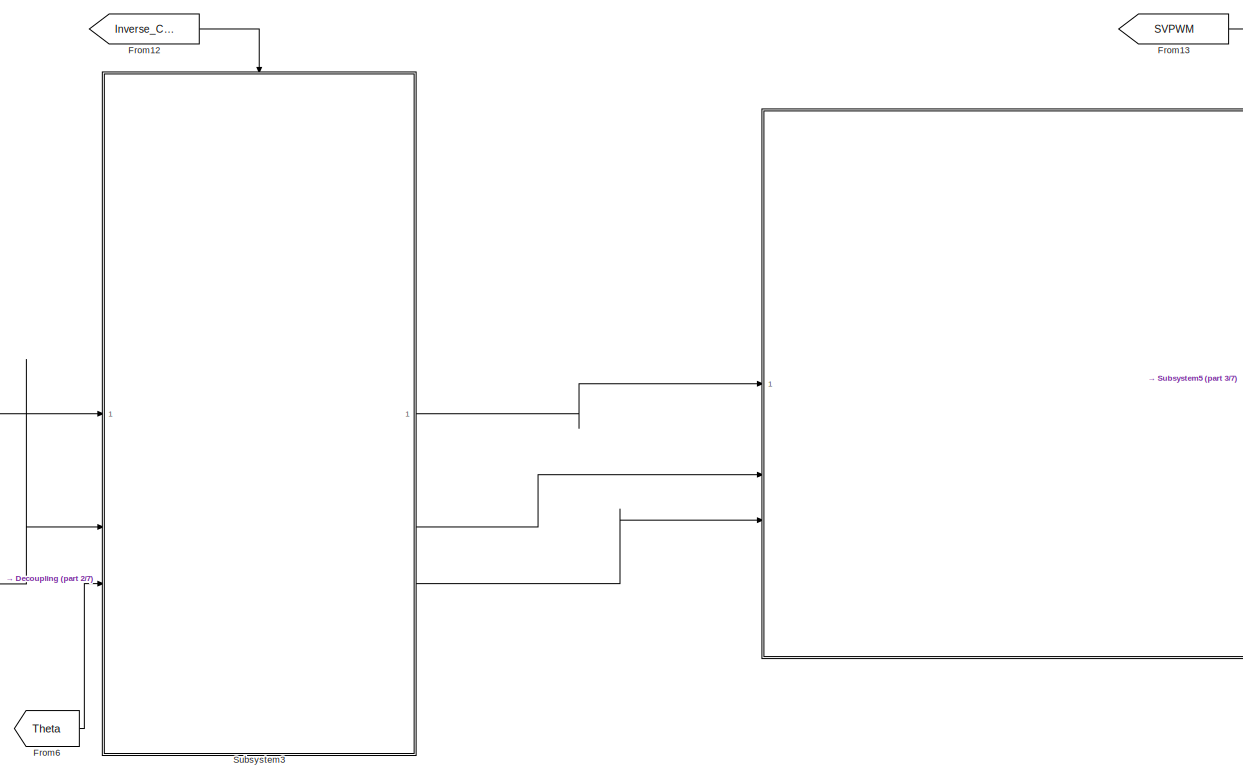
[diagram: root canvas - part 1/7, top center region]
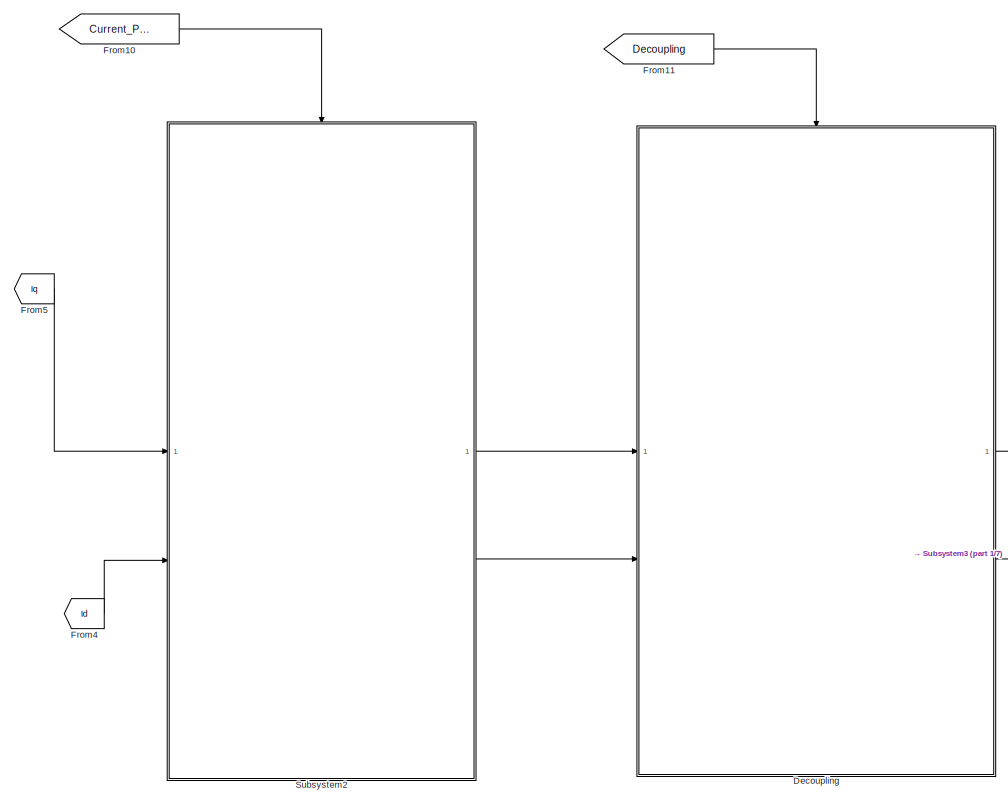
[diagram: root canvas - part 2/7, top left region]
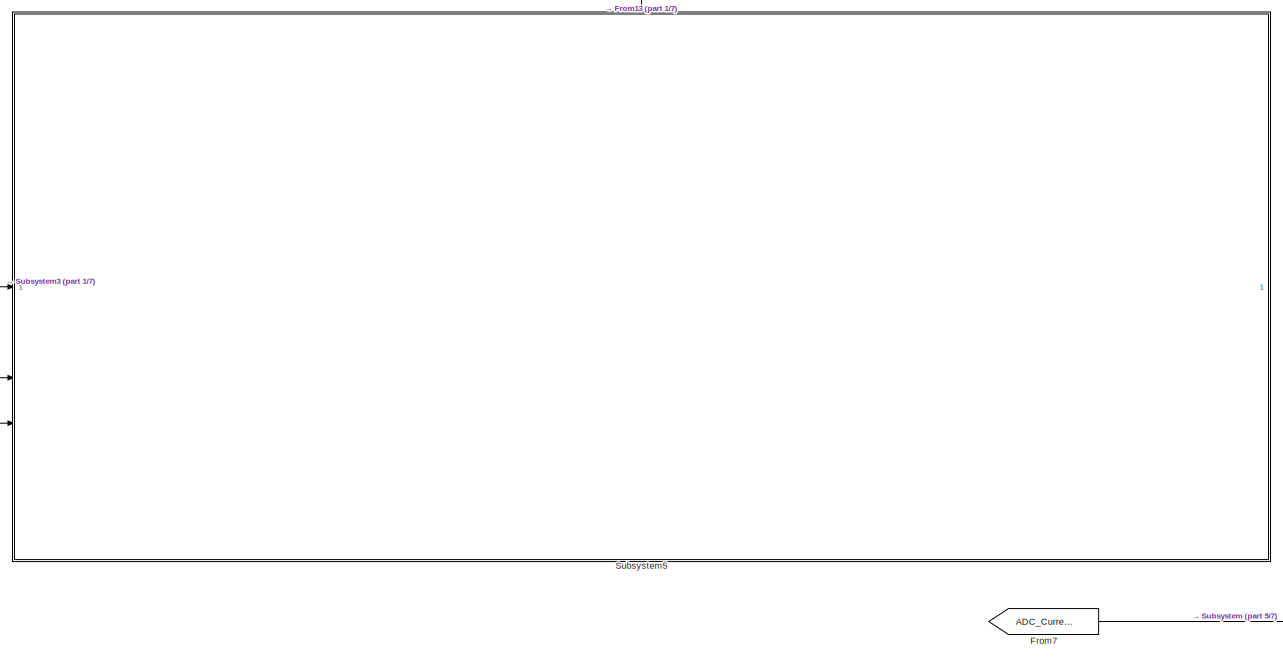
[diagram: root canvas - part 3/7, top center region]
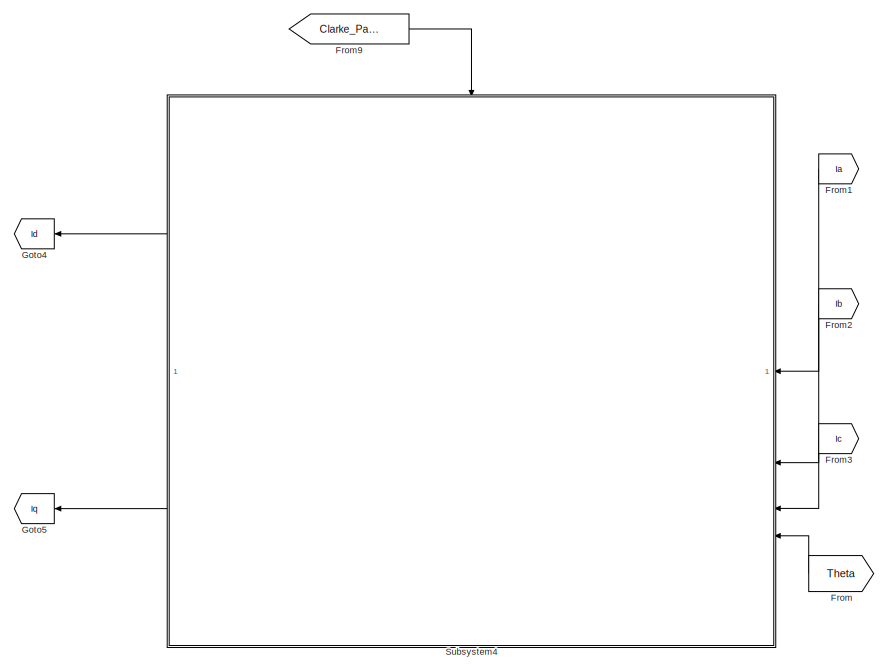
[diagram: root canvas - part 4/7, central region]
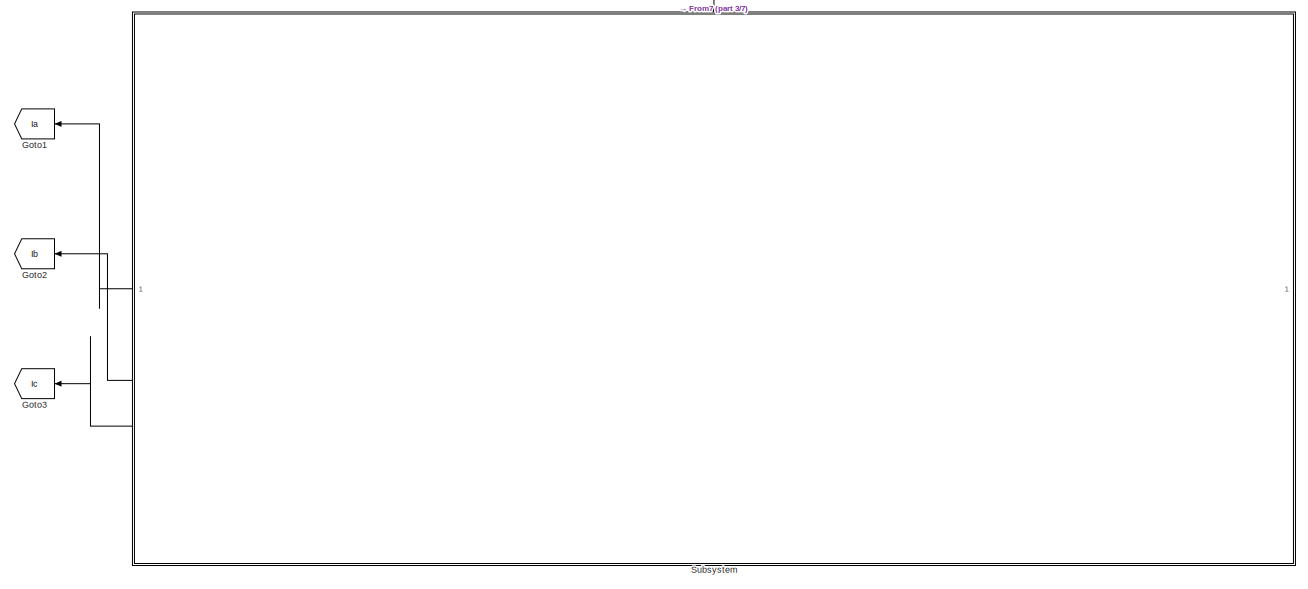
[diagram: root canvas - part 5/7, middle right region]
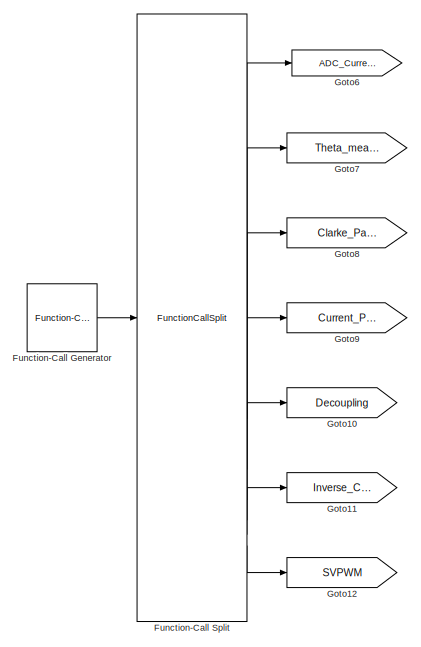
[diagram: root canvas - part 6/7, bottom left region]
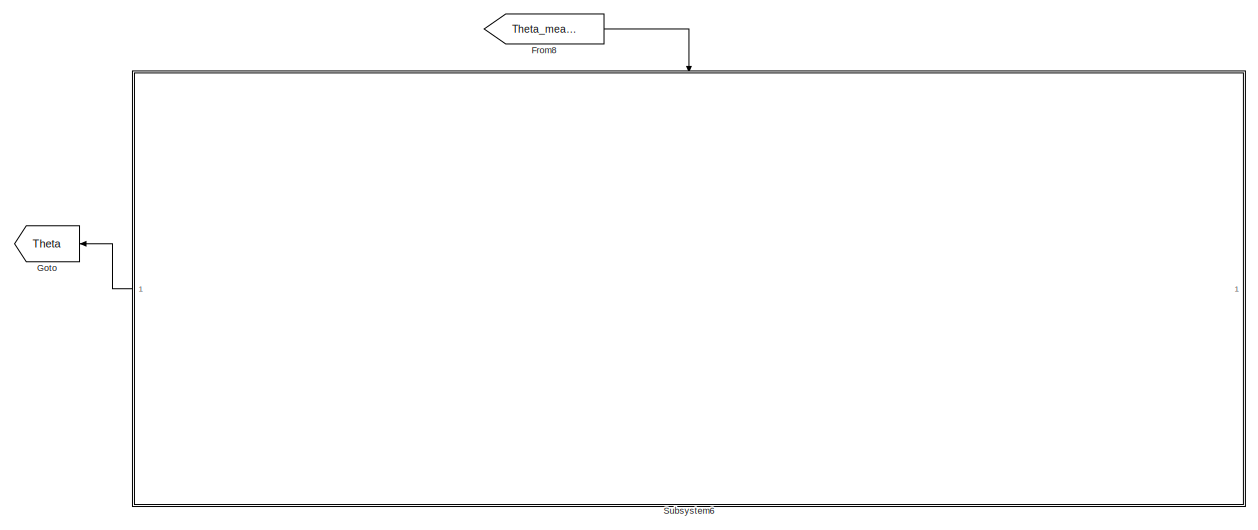
[diagram: root canvas - part 7/7, bottom right region]
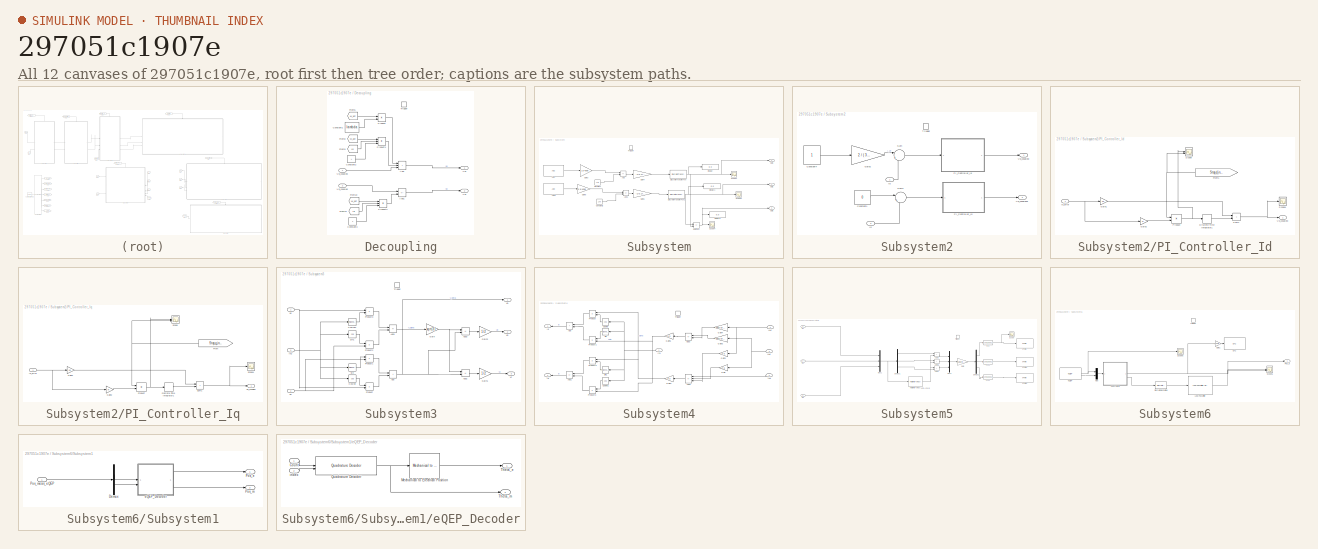
[diagram: thumbnail index - all 12 canvases of the model, root first then tree order]
MODEL slx_297051c1907e
KIND model
CONFIG AbsTol = auto
CONFIG EnableMultiTasking = on
CONFIG FixedStep = 1e-5
CONFIG MaxStep = auto
CONFIG MinStep = auto
CONFIG RelTol = 1e-3
CONFIG SampleTimeConstraint = Unconstrained
CONFIG SolverName = FixedStepAuto
CONFIG StartTime = 0.0
CONFIG StopTime = Inf
BLOCK [SubSystem] Decoupling
BLOCK [Sum] Decoupling/Add
  IconShape = rectangular
  Inputs = +++
BLOCK [Sum] Decoupling/Add1
  IconShape = rectangular
  Inputs = +-
BLOCK [Constant] Decoupling/Constant1
  Value = lambda
BLOCK [Constant] Decoupling/Constant2
  Value = L
BLOCK [Constant] Decoupling/Constant3
  Value = L
BLOCK [From] Decoupling/From10
  GotoTag = W_act
BLOCK [From] Decoupling/From11
  GotoTag = Id
  NameLocation = top
BLOCK [From] Decoupling/From5
  GotoTag = W_act
BLOCK [From] Decoupling/From8
  GotoTag = W_act
BLOCK [From] Decoupling/From9
  GotoTag = Iq
  NameLocation = top
BLOCK [Product] Decoupling/Product
BLOCK [Product] Decoupling/Product1
  Inputs = 3
BLOCK [Product] Decoupling/Product2
  Inputs = 3
BLOCK [TriggerPort] Decoupling/Trigger
  PortDimensions = 1
  StatesWhenEnabling = held
  TriggerType = function-call
  VariantControl = Variant
BLOCK [Outport] Decoupling/Vd*
  Port = 2
BLOCK [Inport] Decoupling/Vd_coupled
  Port = 2
BLOCK [Outport] Decoupling/Vq*
BLOCK [Inport] Decoupling/Vq_coupled
BLOCK [From] From
  GotoTag = Theta
  NameLocation = top
BLOCK [From] From1
  GotoTag = Ia
  NameLocation = top
BLOCK [From] From10
  GotoTag = Current_PI_Control
BLOCK [From] From11
  GotoTag = Decoupling
BLOCK [From] From12
  GotoTag = Inverse_Clarke_Park
BLOCK [From] From13
  GotoTag = SVPWM
BLOCK [From] From2
  GotoTag = Ib
  NameLocation = top
BLOCK [From] From3
  GotoTag = Ic
  NameLocation = top
BLOCK [From] From4
  GotoTag = Id
  NameLocation = top
BLOCK [From] From5
  GotoTag = Iq
  NameLocation = top
BLOCK [From] From6
  GotoTag = Theta
BLOCK [From] From7
  GotoTag = ADC_Current
BLOCK [From] From8
  GotoTag = Theta_measurment
BLOCK [From] From9
  GotoTag = Clarke_Park
BLOCK [Reference] Function-Call Generator  REF=simulink/Ports &
Subsystems/Function-Call
Generator
  SourceBlock = simulink/Ports &\nSubsystems/Function-Call\nGenerator
  SourceType = Function-Call Generator
BLOCK [FunctionCallSplit] Function-Call Split
  IconShape = distinctive
  NumOutputPorts = 7
  OutputPortLayout = default
BLOCK [Goto] Goto
  GotoTag = Theta
BLOCK [Goto] Goto1
  GotoTag = Ia
BLOCK [Goto] Goto10
  GotoTag = Decoupling
BLOCK [Goto] Goto11
  GotoTag = Inverse_Clarke_Park
BLOCK [Goto] Goto12
  GotoTag = SVPWM
BLOCK [Goto] Goto2
  GotoTag = Ib
BLOCK [Goto] Goto3
  GotoTag = Ic
BLOCK [Goto] Goto4
  GotoTag = Id
  NameLocation = top
BLOCK [Goto] Goto5
  GotoTag = Iq
  NameLocation = top
BLOCK [Goto] Goto6
  GotoTag = ADC_Current
BLOCK [Goto] Goto7
  GotoTag = Theta_measurment
BLOCK [Goto] Goto8
  GotoTag = Clarke_Park
BLOCK [Goto] Goto9
  GotoTag = Current_PI_Control
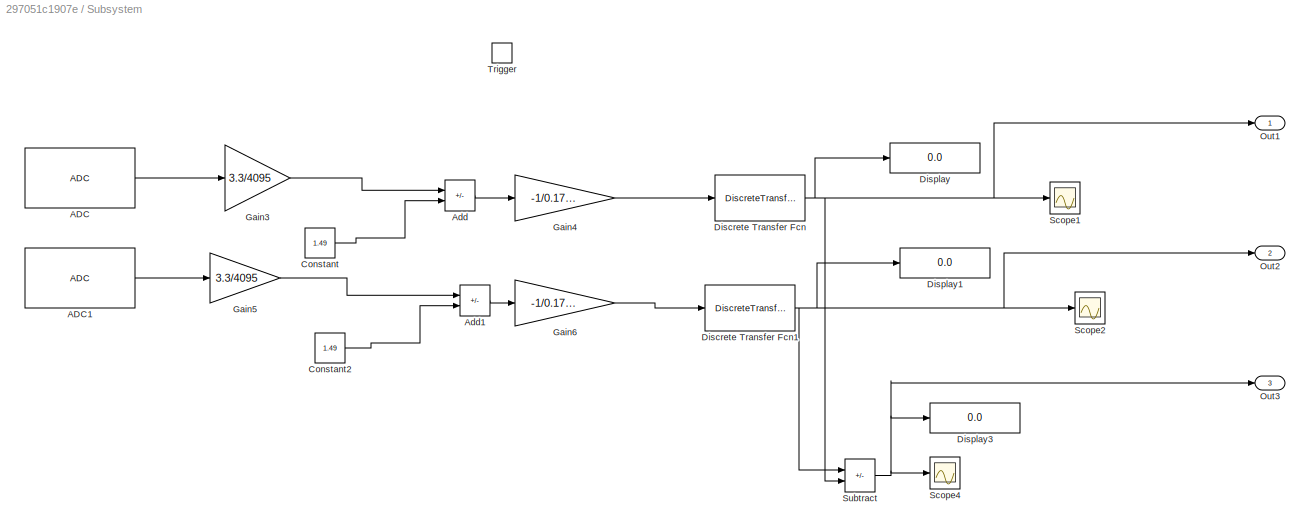
BLOCK [SubSystem] Subsystem
BLOCK [Reference] Subsystem/ADC  REF=c2802xlib/ADC
  LibrarySourceBlock = c2837xDlib/ADC
  SourceBlock = c2802xlib/ADC
  SourceType = ADC Type 3-5
  UserDataPersistent = on
BLOCK [Reference] Subsystem/ADC1  REF=c2802xlib/ADC
  LibrarySourceBlock = c2837xDlib/ADC
  SourceBlock = c2802xlib/ADC
  SourceType = ADC Type 3-5
  UserDataPersistent = on
BLOCK [Sum] Subsystem/Add
  IconShape = rectangular
  Inputs = +-
BLOCK [Sum] Subsystem/Add1
  IconShape = rectangular
  Inputs = +-
BLOCK [Constant] Subsystem/Constant
  Value = 1.49
BLOCK [Constant] Subsystem/Constant2
  Value = 1.49
BLOCK [DiscreteTransferFcn] Subsystem/Discrete Transfer Fcn
  Denominator = [1 -0.9048]
  InputPortMap = u0
  Numerator = [0.09516]
BLOCK [DiscreteTransferFcn] Subsystem/Discrete Transfer Fcn1
  Denominator = [1 -0.9048]
  InputPortMap = u0
  Numerator = [0.09516]
BLOCK [Display] Subsystem/Display
  Decimation = 1
BLOCK [Display] Subsystem/Display1
  Decimation = 1
BLOCK [Display] Subsystem/Display3
  Decimation = 1
BLOCK [Gain] Subsystem/Gain3
  Gain = 3.3/4095
BLOCK [Gain] Subsystem/Gain4
  Gain = -1/0.177985
BLOCK [Gain] Subsystem/Gain5
  Gain = 3.3/4095
BLOCK [Gain] Subsystem/Gain6
  Gain = -1/0.177985
BLOCK [Outport] Subsystem/Out1
BLOCK [Outport] Subsystem/Out2
  Port = 2
BLOCK [Outport] Subsystem/Out3
  Port = 3
BLOCK [Scope] Subsystem/Scope1
  Floating = off
  NumInputPorts = 1
  ScopeSpecificationString = Simulink.scopes.TimeScopeBlockCfg('CurrentConfiguration', extmgr.ConfigurationSet(extmgr.Configuration('Core','General UI',true),extmgr.Configuration('Core','Source UI',true),extmgr.Configuration('Sources','WiredSimulink',true,'DataLoggingVariableName','ScopeData1'),extmgr.Configuration('Visuals','Time Domain',true,'SerializedDisplays',{struct('MinYLimReal','-1.90921','MaxYLimReal','3.42576','YLab...<+1542ch>
BLOCK [Scope] Subsystem/Scope2
  Floating = off
  NumInputPorts = 1
  ScopeSpecificationString = Simulink.scopes.TimeScopeBlockCfg('CurrentConfiguration', extmgr.ConfigurationSet(extmgr.Configuration('Core','General UI',true),extmgr.Configuration('Core','Source UI',true),extmgr.Configuration('Sources','WiredSimulink',true,'DataLoggingVariableName','ScopeData2'),extmgr.Configuration('Visuals','Time Domain',true,'SerializedDisplays',{struct('MinYLimReal','-1.69838','MaxYLimReal','2.28268','YLab...<+1543ch>
BLOCK [Scope] Subsystem/Scope4
  Floating = off
  NumInputPorts = 1
  ScopeSpecificationString = Simulink.scopes.TimeScopeBlockCfg('CurrentConfiguration', extmgr.ConfigurationSet(extmgr.Configuration('Core','General UI',true),extmgr.Configuration('Core','Source UI',true),extmgr.Configuration('Sources','WiredSimulink',true,'DataLoggingVariableName','ScopeData4'),extmgr.Configuration('Visuals','Time Domain',true,'SerializedDisplays',{struct('MinYLimReal','-2.90027','MaxYLimReal','2.0283','YLabe...<+1527ch>
BLOCK [Sum] Subsystem/Subtract
  IconShape = rectangular
  Inputs = --
BLOCK [TriggerPort] Subsystem/Trigger
  PortDimensions = 1
  StatesWhenEnabling = held
  TriggerType = function-call
  VariantControl = (inherit)
BLOCK [SubSystem] Subsystem2
BLOCK [Constant] Subsystem2/Constant1
  Value = 0
BLOCK [Constant] Subsystem2/Constant4
BLOCK [Gain] Subsystem2/Gain2
  Gain = 2 / ( 3 * lambda * p)
BLOCK [Inport] Subsystem2/Id
  Port = 2
BLOCK [Inport] Subsystem2/Iq
BLOCK [SubSystem] Subsystem2/PI_Controller_Id
BLOCK [DiscreteIntegrator] Subsystem2/PI_Controller_Id/Discrete-Time Integrator1
  ICPrevOutput = DiscIntNeverNeededParam
  ICPrevScaledInput = DiscIntNeverNeededParam
  InitialConditionSetting = Auto
  SampleTime = -1
BLOCK [From] Subsystem2/PI_Controller_Id/From1
  GotoTag = Stop_d_integrator
  NameLocation = top
BLOCK [Gain] Subsystem2/PI_Controller_Id/Gain1
  Gain = Kp
BLOCK [Gain] Subsystem2/PI_Controller_Id/Gain2
  Gain = Ki
BLOCK [Inport] Subsystem2/PI_Controller_Id/Id_error
BLOCK [Product] Subsystem2/PI_Controller_Id/Product
BLOCK [Scope] Subsystem2/PI_Controller_Id/Scope
  Floating = off
  NumInputPorts = 2
  ScopeSpecificationString = Simulink.scopes.TimeScopeBlockCfg('CurrentConfiguration', extmgr.ConfigurationSet(extmgr.Configuration('Core','General UI',true),extmgr.Configuration('Core','Source UI',true),extmgr.Configuration('Sources','WiredSimulink',true,'DataLoggingVariableName','ScopeData5'),extmgr.Configuration('Visuals','Time Domain',true,'SerializedDisplays',{struct('MinYLimReal','-1.00000','MaxYLimReal','1.00000','YLab...<+2107ch>
BLOCK [Scope] Subsystem2/PI_Controller_Id/Scope1
  Floating = off
  NumInputPorts = 1
  ScopeSpecificationString = Simulink.scopes.TimeScopeBlockCfg('CurrentConfiguration', extmgr.ConfigurationSet(extmgr.Configuration('Core','General UI',true),extmgr.Configuration('Core','Source UI',true),extmgr.Configuration('Sources','WiredSimulink',true,'DataLoggingVariableName','ScopeData6'),extmgr.Configuration('Visuals','Time Domain',true,'SerializedDisplays',{struct('MinYLimReal','-10.12078','MaxYLimReal','20.5558','YLa...<+1365ch>
BLOCK [Sum] Subsystem2/PI_Controller_Id/Sum1
  IconShape = rectangular
BLOCK [Outport] Subsystem2/PI_Controller_Id/Vd_coupled
BLOCK [SubSystem] Subsystem2/PI_Controller_Iq
BLOCK [DiscreteIntegrator] Subsystem2/PI_Controller_Iq/Discrete-Time Integrator1
  ICPrevOutput = DiscIntNeverNeededParam
  ICPrevScaledInput = DiscIntNeverNeededParam
  InitialConditionSetting = Auto
  SampleTime = -1
BLOCK [From] Subsystem2/PI_Controller_Iq/From
  GotoTag = Stop_q_integrator
  NameLocation = top
BLOCK [Gain] Subsystem2/PI_Controller_Iq/Gain1
  Gain = Kp
BLOCK [Gain] Subsystem2/PI_Controller_Iq/Gain2
  Gain = Ki
BLOCK [Inport] Subsystem2/PI_Controller_Iq/Iq_error
BLOCK [Product] Subsystem2/PI_Controller_Iq/Product
BLOCK [Scope] Subsystem2/PI_Controller_Iq/Scope
  Floating = off
  NumInputPorts = 2
  ScopeSpecificationString = Simulink.scopes.TimeScopeBlockCfg('CurrentConfiguration', extmgr.ConfigurationSet(extmgr.Configuration('Core','General UI',true),extmgr.Configuration('Core','Source UI',true),extmgr.Configuration('Sources','WiredSimulink',true,'DataLoggingVariableName','ScopeData3'),extmgr.Configuration('Visuals','Time Domain',true,'SerializedDisplays',{struct('MinYLimReal','-1.00000','MaxYLimReal','1.00000','YLab...<+2107ch>
BLOCK [Scope] Subsystem2/PI_Controller_Iq/Scope1
  Floating = off
  NumInputPorts = 1
  ScopeSpecificationString = Simulink.scopes.TimeScopeBlockCfg('CurrentConfiguration', extmgr.ConfigurationSet(extmgr.Configuration('Core','General UI',true),extmgr.Configuration('Core','Source UI',true),extmgr.Configuration('Sources','WiredSimulink',true,'DataLoggingVariableName','ScopeData4'),extmgr.Configuration('Visuals','Time Domain',true,'SerializedDisplays',{struct('MinYLimReal','-154.32448','MaxYLimReal','-121.22466',...<+1398ch>
BLOCK [Sum] Subsystem2/PI_Controller_Iq/Sum1
  IconShape = rectangular
BLOCK [Outport] Subsystem2/PI_Controller_Iq/Vq_coupled
BLOCK [Sum] Subsystem2/Sum
  Inputs = |+-
BLOCK [Sum] Subsystem2/Sum1
  Inputs = |+-
BLOCK [TriggerPort] Subsystem2/Trigger
  PortDimensions = 1
  StatesWhenEnabling = held
  TriggerType = function-call
  VariantControl = (inherit)
BLOCK [Outport] Subsystem2/Vd_coupled1
  Port = 2
BLOCK [Outport] Subsystem2/Vq_coupled
BLOCK [SubSystem] Subsystem3
BLOCK [Sum] Subsystem3/Add
  IconShape = rectangular
BLOCK [Sum] Subsystem3/Add1
  IconShape = rectangular
  Inputs = -+
BLOCK [Sum] Subsystem3/Add2
  IconShape = rectangular
  Inputs = --
BLOCK [Sum] Subsystem3/Add3
  IconShape = rectangular
  Inputs = +-
BLOCK [Trigonometry] Subsystem3/Cosine
  NameLocation = top
  Operator = cos
BLOCK [Trigonometry] Subsystem3/Cosine1
  NameLocation = top
BLOCK [Gain] Subsystem3/Gain
  Gain = sqrt(3)
BLOCK [Gain] Subsystem3/Gain1
  Gain = 1/2
BLOCK [Gain] Subsystem3/Gain2
  Gain = 1/2
BLOCK [Inport] Subsystem3/In2
  Port = 3
BLOCK [Product] Subsystem3/Product
BLOCK [Product] Subsystem3/Product1
BLOCK [Product] Subsystem3/Product2
BLOCK [Product] Subsystem3/Product3
BLOCK [Trigonometry] Subsystem3/Sin
BLOCK [Trigonometry] Subsystem3/Sin1
  NameLocation = top
  Operator = cos
BLOCK [TriggerPort] Subsystem3/Trigger
  PortDimensions = 1
  StatesWhenEnabling = held
  TriggerType = function-call
  VariantControl = Variant
BLOCK [Outport] Subsystem3/Va
BLOCK [Outport] Subsystem3/Vb
  Port = 2
BLOCK [Outport] Subsystem3/Vc
  Port = 3
BLOCK [Inport] Subsystem3/Vd
  Port = 2
BLOCK [Inport] Subsystem3/Vq
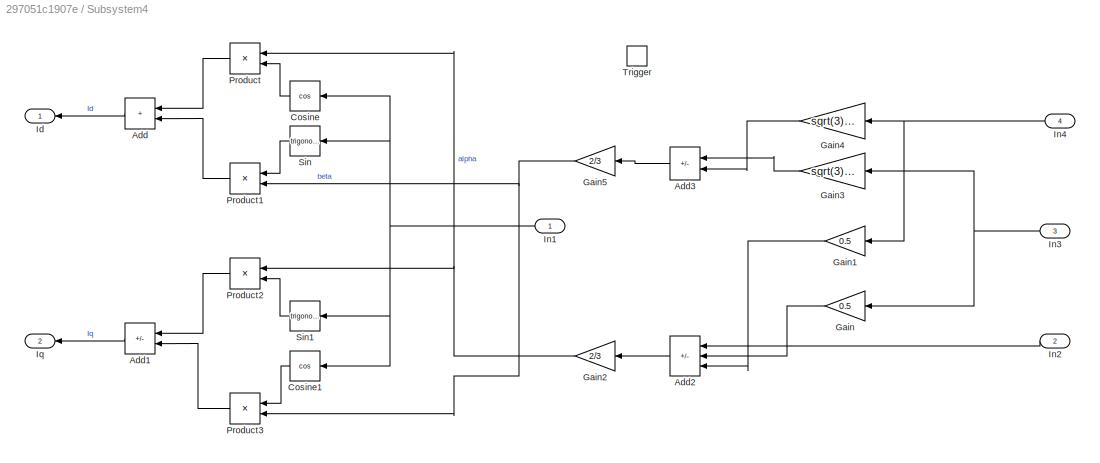
BLOCK [SubSystem] Subsystem4
BLOCK [Sum] Subsystem4/Add
  IconShape = rectangular
  NameLocation = top
BLOCK [Sum] Subsystem4/Add1
  IconShape = rectangular
  Inputs = -+
  NameLocation = top
BLOCK [Sum] Subsystem4/Add2
  IconShape = rectangular
  Inputs = +--
  NameLocation = top
BLOCK [Sum] Subsystem4/Add3
  IconShape = rectangular
  Inputs = +-
  NameLocation = top
BLOCK [Trigonometry] Subsystem4/Cosine
  Operator = cos
BLOCK [Trigonometry] Subsystem4/Cosine1
  Operator = cos
BLOCK [Gain] Subsystem4/Gain
  Gain = 0.5
  NameLocation = top
BLOCK [Gain] Subsystem4/Gain1
  Gain = 0.5
  NameLocation = top
BLOCK [Gain] Subsystem4/Gain2
  Gain = 2/3
  NameLocation = top
BLOCK [Gain] Subsystem4/Gain3
  Gain = sqrt(3)/2
  NameLocation = top
BLOCK [Gain] Subsystem4/Gain4
  Gain = sqrt(3)/2
  NameLocation = top
BLOCK [Gain] Subsystem4/Gain5
  Gain = 2/3
  NameLocation = top
BLOCK [Outport] Subsystem4/Id
BLOCK [Inport] Subsystem4/In1
BLOCK [Inport] Subsystem4/In2
  Port = 2
BLOCK [Inport] Subsystem4/In3
  Port = 3
BLOCK [Inport] Subsystem4/In4
  Port = 4
BLOCK [Outport] Subsystem4/Iq
  Port = 2
BLOCK [Product] Subsystem4/Product
  NameLocation = top
BLOCK [Product] Subsystem4/Product1
  NameLocation = top
BLOCK [Product] Subsystem4/Product2
  NameLocation = top
BLOCK [Product] Subsystem4/Product3
  NameLocation = top
BLOCK [Trigonometry] Subsystem4/Sin
  NameLocation = top
BLOCK [Trigonometry] Subsystem4/Sin1
BLOCK [TriggerPort] Subsystem4/Trigger
  PortDimensions = 1
  StatesWhenEnabling = held
  TriggerType = function-call
  VariantControl = (inherit)
BLOCK [SubSystem] Subsystem5
BLOCK [Sum] Subsystem5/Add3
  AccumDataTypeStr = Inherit: Same as first input
  IconShape = rectangular
  OutDataTypeStr = Inherit: Same as first input
  RndMeth = Simplest
BLOCK [Sum] Subsystem5/Add4
  AccumDataTypeStr = Inherit: Same as first input
  IconShape = rectangular
  OutDataTypeStr = Inherit: Same as first input
  RndMeth = Simplest
BLOCK [Sum] Subsystem5/Add5
  AccumDataTypeStr = Inherit: Same as first input
  IconShape = rectangular
  OutDataTypeStr = Inherit: Same as first input
  RndMeth = Simplest
BLOCK [Demux] Subsystem5/Demux1
  Outputs = 3
BLOCK [Demux] Subsystem5/Demux2
  Outputs = 3
BLOCK [Fcn] Subsystem5/Fcn
  Expr = (u+1)*(10000/2)
BLOCK [Fcn] Subsystem5/Fcn1
  Expr = (u+1)*(10000/2)
BLOCK [Fcn] Subsystem5/Fcn2
  Expr = (u+1)*(10000/2)
BLOCK [Gain] Subsystem5/Gain
  Gain = 2/sqrt(3)
  OutDataTypeStr = Inherit: Same as input
  ParamDataTypeStr = Inherit: Same as input
  RndMeth = Simplest
BLOCK [Reference] Subsystem5/Half(Vmin+Vmax)  REF=mcbcontrolslib/PWM Reference Generator/Modulation method/SVPWM/Half(Vmin+Vmax)
  SourceBlock = mcbcontrolslib/PWM Reference Generator/Modulation method/SVPWM/Half(Vmin+Vmax)
  SourceType = SubSystem
BLOCK [Inport] Subsystem5/In1
BLOCK [Inport] Subsystem5/In2
  Port = 2
BLOCK [Inport] Subsystem5/In3
  Port = 3
BLOCK [Mux] Subsystem5/Mux1
  DisplayOption = bar
  Inputs = 3
BLOCK [Mux] Subsystem5/Mux2
  DisplayOption = bar
  Inputs = 3
BLOCK [Scope] Subsystem5/Scope
  Floating = off
  NumInputPorts = 1
  ScopeSpecificationString = Simulink.scopes.TimeScopeBlockCfg('CurrentConfiguration', extmgr.ConfigurationSet(extmgr.Configuration('Core','General UI',true),extmgr.Configuration('Core','Source UI',true),extmgr.Configuration('Sources','WiredSimulink',true,'DataLoggingVariableName','ScopeData5'),extmgr.Configuration('Visuals','Time Domain',true,'SerializedDisplays',{struct('MinYLimReal','443.52078','MaxYLimReal','9777.54789','...<+1513ch>
BLOCK [TriggerPort] Subsystem5/Trigger
  PortDimensions = 1
  StatesWhenEnabling = held
  TriggerType = function-call
  VariantControl = (inherit)
BLOCK [Reference] Subsystem5/ePWM  REF=c2802xlib/ePWM
  LibrarySourceBlock = c2837xDlib/ePWM
  SourceBlock = c2802xlib/ePWM
  SourceType = ePWM Type 1-4
  UserDataPersistent = on
BLOCK [Reference] Subsystem5/ePWM1  REF=c2802xlib/ePWM
  LibrarySourceBlock = c2837xDlib/ePWM
  SourceBlock = c2802xlib/ePWM
  SourceType = ePWM Type 1-4
  UserDataPersistent = on
BLOCK [Reference] Subsystem5/ePWM2  REF=c2802xlib/ePWM
  LibrarySourceBlock = c2837xDlib/ePWM
  SourceBlock = c2802xlib/ePWM
  SourceType = ePWM Type 1-4
  UserDataPersistent = on
BLOCK [SubSystem] Subsystem6
BLOCK [Reference] Subsystem6/DAC  REF=c2837xDlib/DAC
  SourceBlock = c2837xDlib/DAC
  SourceType = codertarget.tic2000.blocks.DACWrite
BLOCK [Reference] Subsystem6/Discrete Derivative  REF=simulink/Discrete/Discrete Derivative
  SourceBlock = simulink/Discrete/Discrete Derivative
  SourceType = Discrete Derivative
BLOCK [Gain] Subsystem6/Gain1
  Gain = 4095/(2*pi)
BLOCK [Reference] Subsystem6/Low-Pass Filter   REF=eeGeneralControl/Low-Pass Filter
(Discrete or Continuous)
  SourceBlock = eeGeneralControl/Low-Pass Filter\n(Discrete or Continuous)
  SourceType = Low-Pass Filter (Discrete or Continuous)
BLOCK [Mux] Subsystem6/Mux
  DisplayOption = bar
  Inputs = 2
BLOCK [Outport] Subsystem6/Pos_e
BLOCK [Scope] Subsystem6/Scope5
  Floating = off
  NumInputPorts = 1
  ScopeSpecificationString = Simulink.scopes.TimeScopeBlockCfg('CurrentConfiguration', extmgr.ConfigurationSet(extmgr.Configuration('Core','General UI',true),extmgr.Configuration('Core','Source UI',true),extmgr.Configuration('Sources','WiredSimulink',true,'DataLoggingVariableName','ScopeData6'),extmgr.Configuration('Visuals','Time Domain',true,'SerializedDisplays',{struct('MinYLimReal','-3750.00000','MaxYLimReal','33750.00000...<+1553ch>
BLOCK [Scope] Subsystem6/Scope6
  Floating = off
  NumInputPorts = 2
  ScopeSpecificationString = Simulink.scopes.TimeScopeBlockCfg('CurrentConfiguration', extmgr.ConfigurationSet(extmgr.Configuration('Core','General UI',true),extmgr.Configuration('Core','Source UI',true),extmgr.Configuration('Sources','WiredSimulink',true,'DataLoggingVariableName','ScopeData7'),extmgr.Configuration('Visuals','Time Domain',true,'SerializedDisplays',{struct('MinYLimReal','-0.78501','MaxYLimReal','7.06505','YLab...<+3125ch>
BLOCK [SubSystem] Subsystem6/Subsystem1
BLOCK [Demux] Subsystem6/Subsystem1/Demux
  Outputs = 2
BLOCK [Outport] Subsystem6/Subsystem1/Pos_e
  InitialOutput = 0
  VectorParamsAs1DForOutWhenUnconnected = off
BLOCK [Outport] Subsystem6/Subsystem1/Pos_m
  InitialOutput = 0
  Port = 2
  VectorParamsAs1DForOutWhenUnconnected = off
BLOCK [Inport] Subsystem6/Subsystem1/Pos_meas_eQEP
BLOCK [SubSystem] Subsystem6/Subsystem1/eQEP_Decoder
BLOCK [Inport] Subsystem6/Subsystem1/eQEP_Decoder/Count
BLOCK [Reference] Subsystem6/Subsystem1/eQEP_Decoder/Mechanical to Electrical Position  REF=mcbpositiondecoderlib/Mechanical to Electrical Position
  SourceBlock = mcbpositiondecoderlib/Mechanical to Electrical Position
  SourceType = Mechanical to Electrical Position
BLOCK [Reference] Subsystem6/Subsystem1/eQEP_Decoder/Quadrature Decoder  REF=mcbpositiondecoderlib/Quadrature Decoder
  SourceBlock = mcbpositiondecoderlib/Quadrature Decoder
  SourceType = Quadrature Decoder
BLOCK [Outport] Subsystem6/Subsystem1/eQEP_Decoder/Theta_e
  VectorParamsAs1DForOutWhenUnconnected = off
BLOCK [Outport] Subsystem6/Subsystem1/eQEP_Decoder/Theta_m
  Port = 2
  VectorParamsAs1DForOutWhenUnconnected = off
BLOCK [Inport] Subsystem6/Subsystem1/eQEP_Decoder/index
  Port = 2
BLOCK [TriggerPort] Subsystem6/Trigger
  PortDimensions = 1
  StatesWhenEnabling = held
  TriggerType = function-call
  VariantControl = (inherit)
BLOCK [Reference] Subsystem6/eQEP  REF=c280xlib/eQEP
  SourceBlock = c280xlib/eQEP
  SourceType = C28x eQEP
ANNOTATION Subsystem5: (Vmin+Vmax)/2
LINE Decoupling/Add1:1 -> Decoupling/Vd*:1
LINE Decoupling/Add:1 -> Decoupling/Vq*:1
LINE Decoupling/Constant1:1 -> Decoupling/Product:2
LINE Decoupling/Constant2:1 -> Decoupling/Product1:3
LINE Decoupling/Constant3:1 -> Decoupling/Product2:3
LINE Decoupling/From10:1 -> Decoupling/Product2:1
LINE Decoupling/From11:1 -> Decoupling/Product2:2
LINE Decoupling/From5:1 -> Decoupling/Product:1
LINE Decoupling/From8:1 -> Decoupling/Product1:1
LINE Decoupling/From9:1 -> Decoupling/Product1:2
LINE Decoupling/Product1:1 -> Decoupling/Add:2
LINE Decoupling/Product2:1 -> Decoupling/Add1:2
LINE Decoupling/Product:1 -> Decoupling/Add:1
LINE Decoupling/Vd_coupled:1 -> Decoupling/Add1:1
LINE Decoupling/Vq_coupled:1 -> Decoupling/Add:3
LINE Decoupling:1 -> Subsystem3:1
LINE Decoupling:2 -> Subsystem3:2
LINE From10:1 -> Subsystem2:trigger
LINE From11:1 -> Decoupling:trigger
LINE From12:1 -> Subsystem3:trigger
LINE From13:1 -> Subsystem5:trigger
LINE From1:1 -> Subsystem4:1
LINE From2:1 -> Subsystem4:2
LINE From3:1 -> Subsystem4:3
LINE From4:1 -> Subsystem2:2
LINE From5:1 -> Subsystem2:1
LINE From6:1 -> Subsystem3:3
LINE From7:1 -> Subsystem:trigger
LINE From8:1 -> Subsystem6:trigger
LINE From9:1 -> Subsystem4:trigger
LINE From:1 -> Subsystem4:4
LINE Function-Call Generator:1 -> Function-Call Split:1
LINE Function-Call Split:1 -> Goto6:1
LINE Function-Call Split:2 -> Goto7:1
LINE Function-Call Split:3 -> Goto8:1
LINE Function-Call Split:4 -> Goto9:1
LINE Function-Call Split:5 -> Goto10:1
LINE Function-Call Split:6 -> Goto11:1
LINE Function-Call Split:7 -> Goto12:1
LINE Subsystem/ADC1:1 -> Subsystem/Gain5:1
LINE Subsystem/ADC:1 -> Subsystem/Gain3:1
LINE Subsystem/Add1:1 -> Subsystem/Gain6:1
LINE Subsystem/Add:1 -> Subsystem/Gain4:1
LINE Subsystem/Constant2:1 -> Subsystem/Add1:2
LINE Subsystem/Constant:1 -> Subsystem/Add:2
NET Subsystem/Discrete Transfer Fcn1:1 -> Subsystem/Display1:1, Subsystem/Out2:1, Subsystem/Scope2:1, Subsystem/Subtract:1
NET Subsystem/Discrete Transfer Fcn:1 -> Subsystem/Display:1, Subsystem/Out1:1, Subsystem/Scope1:1, Subsystem/Subtract:2
LINE Subsystem/Gain3:1 -> Subsystem/Add:1
LINE Subsystem/Gain4:1 -> Subsystem/Discrete Transfer Fcn:1
LINE Subsystem/Gain5:1 -> Subsystem/Add1:1
LINE Subsystem/Gain6:1 -> Subsystem/Discrete Transfer Fcn1:1
NET Subsystem/Subtract:1 -> Subsystem/Display3:1, Subsystem/Out3:1, Subsystem/Scope4:1
LINE Subsystem2/Constant1:1 -> Subsystem2/Sum1:1
LINE Subsystem2/Constant4:1 -> Subsystem2/Gain2:1
LINE Subsystem2/Gain2:1 -> Subsystem2/Sum:1
LINE Subsystem2/Id:1 -> Subsystem2/Sum1:2
LINE Subsystem2/Iq:1 -> Subsystem2/Sum:2
LINE Subsystem2/PI_Controller_Id/Discrete-Time Integrator1:1 -> Subsystem2/PI_Controller_Id/Sum1:2
NET Subsystem2/PI_Controller_Id/From1:1 -> Subsystem2/PI_Controller_Id/Product:1, Subsystem2/PI_Controller_Id/Scope:2
LINE Subsystem2/PI_Controller_Id/Gain1:1 -> Subsystem2/PI_Controller_Id/Sum1:1
LINE Subsystem2/PI_Controller_Id/Gain2:1 -> Subsystem2/PI_Controller_Id/Product:2
NET Subsystem2/PI_Controller_Id/Id_error:1 -> Subsystem2/PI_Controller_Id/Gain1:1, Subsystem2/PI_Controller_Id/Gain2:1
NET Subsystem2/PI_Controller_Id/Product:1 -> Subsystem2/PI_Controller_Id/Discrete-Time Integrator1:1, Subsystem2/PI_Controller_Id/Scope:1
NET Subsystem2/PI_Controller_Id/Sum1:1 -> Subsystem2/PI_Controller_Id/Scope1:1, Subsystem2/PI_Controller_Id/Vd_coupled:1
LINE Subsystem2/PI_Controller_Id:1 -> Subsystem2/Vd_coupled1:1
LINE Subsystem2/PI_Controller_Iq/Discrete-Time Integrator1:1 -> Subsystem2/PI_Controller_Iq/Sum1:2
NET Subsystem2/PI_Controller_Iq/From:1 -> Subsystem2/PI_Controller_Iq/Product:1, Subsystem2/PI_Controller_Iq/Scope:2
LINE Subsystem2/PI_Controller_Iq/Gain1:1 -> Subsystem2/PI_Controller_Iq/Sum1:1
LINE Subsystem2/PI_Controller_Iq/Gain2:1 -> Subsystem2/PI_Controller_Iq/Product:2
NET Subsystem2/PI_Controller_Iq/Iq_error:1 -> Subsystem2/PI_Controller_Iq/Gain1:1, Subsystem2/PI_Controller_Iq/Gain2:1
NET Subsystem2/PI_Controller_Iq/Product:1 -> Subsystem2/PI_Controller_Iq/Discrete-Time Integrator1:1, Subsystem2/PI_Controller_Iq/Scope:1
NET Subsystem2/PI_Controller_Iq/Sum1:1 -> Subsystem2/PI_Controller_Iq/Scope1:1, Subsystem2/PI_Controller_Iq/Vq_coupled:1
LINE Subsystem2/PI_Controller_Iq:1 -> Subsystem2/Vq_coupled:1
LINE Subsystem2/Sum1:1 -> Subsystem2/PI_Controller_Id:1
LINE Subsystem2/Sum:1 -> Subsystem2/PI_Controller_Iq:1
LINE Subsystem2:1 -> Decoupling:1
LINE Subsystem2:2 -> Decoupling:2
LINE Subsystem3/Add1:1 -> Subsystem3/Gain:1
LINE Subsystem3/Add2:1 -> Subsystem3/Gain1:1
LINE Subsystem3/Add3:1 -> Subsystem3/Gain2:1
NET Subsystem3/Add:1 -> Subsystem3/Add2:2, Subsystem3/Add3:2, Subsystem3/Va:1
LINE Subsystem3/Cosine1:1 -> Subsystem3/Product3:2
LINE Subsystem3/Cosine:1 -> Subsystem3/Product:1
LINE Subsystem3/Gain1:1 -> Subsystem3/Vc:1
LINE Subsystem3/Gain2:1 -> Subsystem3/Vb:1
NET Subsystem3/Gain:1 -> Subsystem3/Add2:1, Subsystem3/Add3:1
NET Subsystem3/In2:1 -> Subsystem3/Cosine1:1, Subsystem3/Cosine:1, Subsystem3/Sin1:1, Subsystem3/Sin:1
LINE Subsystem3/Product1:1 -> Subsystem3/Add:1
LINE Subsystem3/Product2:1 -> Subsystem3/Add1:2
LINE Subsystem3/Product3:1 -> Subsystem3/Add1:1
LINE Subsystem3/Product:1 -> Subsystem3/Add:2
LINE Subsystem3/Sin1:1 -> Subsystem3/Product2:1
LINE Subsystem3/Sin:1 -> Subsystem3/Product1:1
NET Subsystem3/Vd:1 -> Subsystem3/Product1:2, Subsystem3/Product2:2
NET Subsystem3/Vq:1 -> Subsystem3/Product3:1, Subsystem3/Product:2
LINE Subsystem3:1 -> Subsystem5:1
LINE Subsystem3:2 -> Subsystem5:2
LINE Subsystem3:3 -> Subsystem5:3
LINE Subsystem4/Add1:1 -> Subsystem4/Iq:1
LINE Subsystem4/Add2:1 -> Subsystem4/Gain2:1
LINE Subsystem4/Add3:1 -> Subsystem4/Gain5:1
LINE Subsystem4/Add:1 -> Subsystem4/Id:1
LINE Subsystem4/Cosine1:1 -> Subsystem4/Product3:1
LINE Subsystem4/Cosine:1 -> Subsystem4/Product:2
LINE Subsystem4/Gain1:1 -> Subsystem4/Add2:3
NET Subsystem4/Gain2:1 -> Subsystem4/Product2:1, Subsystem4/Product:1
LINE Subsystem4/Gain3:1 -> Subsystem4/Add3:1
LINE Subsystem4/Gain4:1 -> Subsystem4/Add3:2
NET Subsystem4/Gain5:1 -> Subsystem4/Product1:2, Subsystem4/Product3:2
LINE Subsystem4/Gain:1 -> Subsystem4/Add2:2
NET Subsystem4/In1:1 -> Subsystem4/Cosine1:1, Subsystem4/Cosine:1, Subsystem4/Sin1:1, Subsystem4/Sin:1
LINE Subsystem4/In2:1 -> Subsystem4/Add2:1
NET Subsystem4/In3:1 -> Subsystem4/Gain3:1, Subsystem4/Gain:1
NET Subsystem4/In4:1 -> Subsystem4/Gain1:1, Subsystem4/Gain4:1
LINE Subsystem4/Product1:1 -> Subsystem4/Add:2
LINE Subsystem4/Product2:1 -> Subsystem4/Add1:1
LINE Subsystem4/Product3:1 -> Subsystem4/Add1:2
LINE Subsystem4/Product:1 -> Subsystem4/Add:1
LINE Subsystem4/Sin1:1 -> Subsystem4/Product2:2
LINE Subsystem4/Sin:1 -> Subsystem4/Product1:1
LINE Subsystem4:1 -> Goto4:1
LINE Subsystem4:2 -> Goto5:1
LINE Subsystem5/Add3:1 -> Subsystem5/Mux2:2
LINE Subsystem5/Add4:1 -> Subsystem5/Mux2:3
LINE Subsystem5/Add5:1 -> Subsystem5/Mux2:1
LINE Subsystem5/Demux1:1 -> Subsystem5/Add5:1
LINE Subsystem5/Demux1:2 -> Subsystem5/Add3:1
LINE Subsystem5/Demux1:3 -> Subsystem5/Add4:2
LINE Subsystem5/Demux2:1 -> Subsystem5/Fcn:1
LINE Subsystem5/Demux2:2 -> Subsystem5/Fcn1:1
LINE Subsystem5/Demux2:3 -> Subsystem5/Fcn2:1
LINE Subsystem5/Fcn1:1 -> Subsystem5/ePWM1:1
LINE Subsystem5/Fcn2:1 -> Subsystem5/ePWM2:1
NET Subsystem5/Fcn:1 -> Subsystem5/Scope:1, Subsystem5/ePWM:1
LINE Subsystem5/Gain:1 -> Subsystem5/Demux2:1
NET Subsystem5/Half(Vmin+Vmax):1 -> Subsystem5/Add3:2, Subsystem5/Add4:1, Subsystem5/Add5:2
LINE Subsystem5/In1:1 -> Subsystem5/Mux1:1
LINE Subsystem5/In2:1 -> Subsystem5/Mux1:2
LINE Subsystem5/In3:1 -> Subsystem5/Mux1:3
NET Subsystem5/Mux1:1 -> Subsystem5/Demux1:1, Subsystem5/Half(Vmin+Vmax):1
LINE Subsystem5/Mux2:1 -> Subsystem5/Gain:1
LINE Subsystem6/Discrete Derivative:1 -> Subsystem6/Low-Pass Filter :1
LINE Subsystem6/Gain1:1 -> Subsystem6/DAC:1
LINE Subsystem6/Low-Pass Filter :1 -> Subsystem6/Scope6:2
LINE Subsystem6/Mux:1 -> Subsystem6/Subsystem1:1
LINE Subsystem6/Subsystem1/Demux:1 -> Subsystem6/Subsystem1/eQEP_Decoder:1
LINE Subsystem6/Subsystem1/Demux:2 -> Subsystem6/Subsystem1/eQEP_Decoder:2
LINE Subsystem6/Subsystem1/Pos_meas_eQEP:1 -> Subsystem6/Subsystem1/Demux:1
LINE Subsystem6/Subsystem1/eQEP_Decoder/Count:1 -> Subsystem6/Subsystem1/eQEP_Decoder/Quadrature Decoder:1
LINE Subsystem6/Subsystem1/eQEP_Decoder/Mechanical to Electrical Position:1 -> Subsystem6/Subsystem1/eQEP_Decoder/Theta_e:1
NET Subsystem6/Subsystem1/eQEP_Decoder/Quadrature Decoder:1 -> Subsystem6/Subsystem1/eQEP_Decoder/Mechanical to Electrical Position:1, Subsystem6/Subsystem1/eQEP_Decoder/Theta_m:1
LINE Subsystem6/Subsystem1/eQEP_Decoder/index:1 -> Subsystem6/Subsystem1/eQEP_Decoder/Quadrature Decoder:2
LINE Subsystem6/Subsystem1/eQEP_Decoder:1 -> Subsystem6/Subsystem1/Pos_e:1
LINE Subsystem6/Subsystem1/eQEP_Decoder:2 -> Subsystem6/Subsystem1/Pos_m:1
NET Subsystem6/Subsystem1:1 -> Subsystem6/Gain1:1, Subsystem6/Pos_e:1, Subsystem6/Scope6:1
LINE Subsystem6/Subsystem1:2 -> Subsystem6/Discrete Derivative:1
NET Subsystem6/eQEP:1 -> Subsystem6/Mux:1, Subsystem6/Scope5:1
LINE Subsystem6/eQEP:2 -> Subsystem6/Mux:2
LINE Subsystem6:1 -> Goto:1
LINE Subsystem:1 -> Goto1:1
LINE Subsystem:2 -> Goto2:1
LINE Subsystem:3 -> Goto3:1
note: NET lines group one-source signal fan-out (src -> all destinations, sorted); 1:1 wires keep LINE
